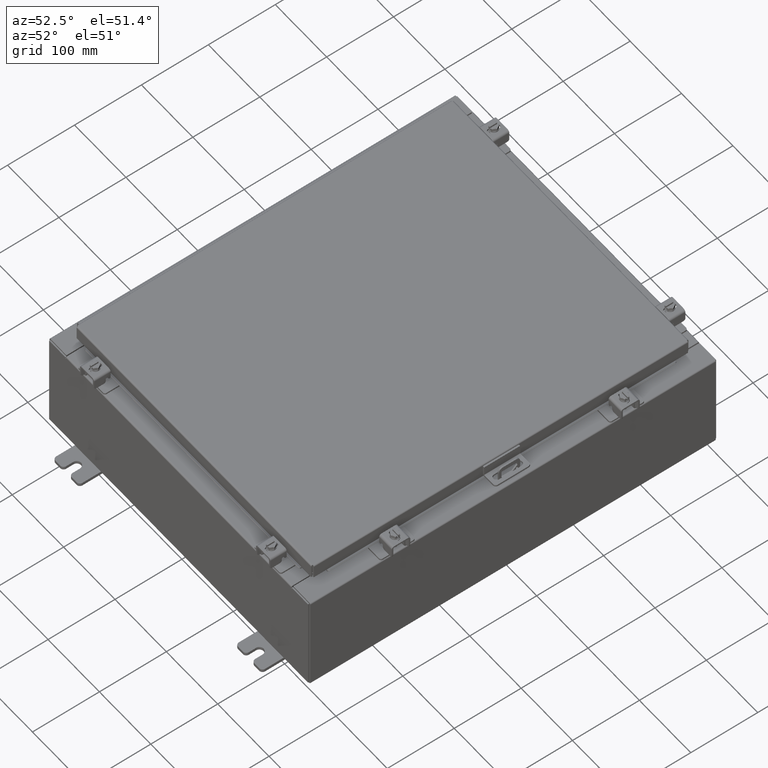
[diagram: clean part render]
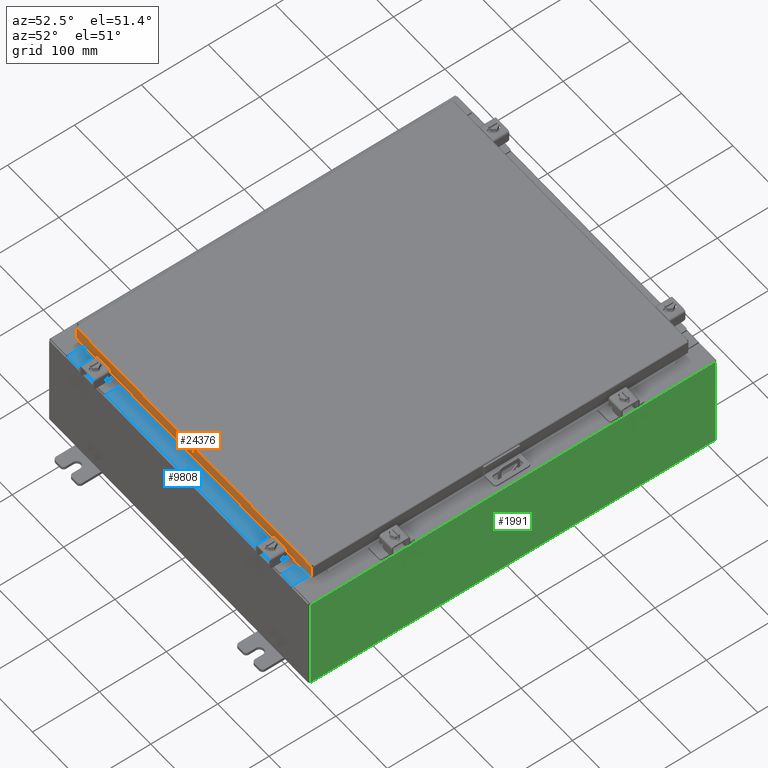
[diagram: same view with three faces highlighted in distinct colors, each labeled with its STEP entity id]
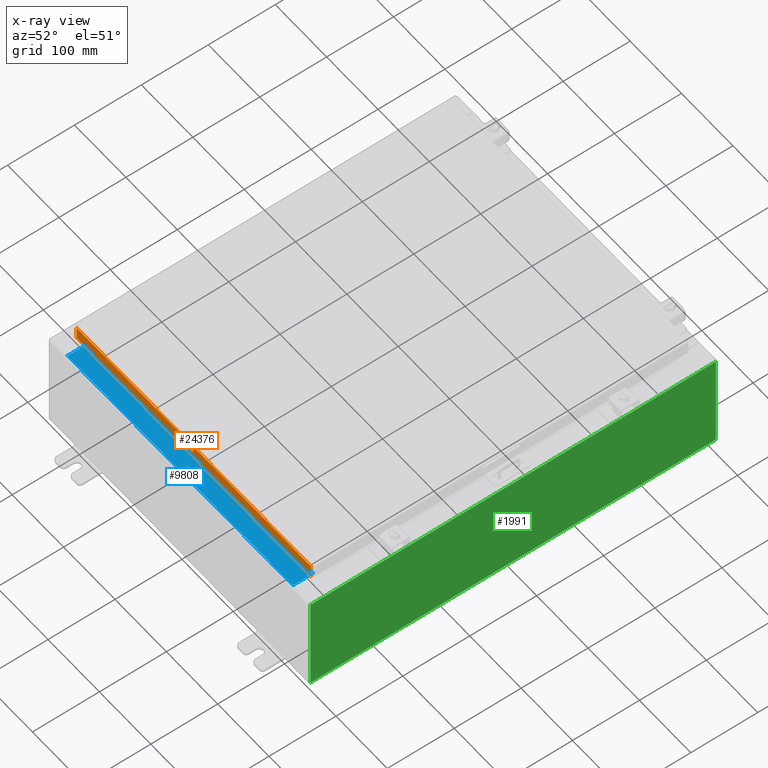
[diagram: x-ray of the same camera — body ghosted, the three highlighted faces saturated]
A machine part, auxiliary view with three faces highlighted in distinct colors.
The next image is the same camera in x-ray (body ghosted, the three faces saturated) — at least one of them is partly hidden behind the body in this view.
Their STEP definitions:

[orange] entity #24376 — the highlighted planar face has unit normal (-0, 1, -0).
#433 = LINE ( 'NONE', #10742, #26698 ) ;
#529 = DIRECTION ( 'NONE',  ( 0.0000000000000000000, 2.818880942772360100E-015, 1.000000000000000000 ) ) ;
#613 = VECTOR ( 'NONE', #11561, 39.37007874015748100 ) ;
#889 = EDGE_CURVE ( 'NONE', #6379, #18050, #25405, .T. ) ;
#1966 = ORIENTED_EDGE ( 'NONE', *, *, #2741, .F. ) ;
#2243 = VERTEX_POINT ( 'NONE', #21317 ) ;
#2741 = EDGE_CURVE ( 'NONE', #26755, #18050, #29718, .T. ) ;
#2952 = ORIENTED_EDGE ( 'NONE', *, *, #11188, .F. ) ;
#3017 = CARTESIAN_POINT ( 'NONE',  ( 9.077999999999999400, -11.09400000000000300, -0.8499999999999999800 ) ) ;
#3130 = LINE ( 'NONE', #19368, #22613 ) ;
#3340 = AXIS2_PLACEMENT_3D ( 'NONE', #13199, #15753, #529 ) ;
#4161 = DIRECTION ( 'NONE',  ( -1.000000000000000000, -1.203722403024570700E-016, 1.203722403024570700E-016 ) ) ;
#4254 = VECTOR ( 'NONE', #20784, 39.37007874015748100 ) ;
#5858 = VERTEX_POINT ( 'NONE', #21837 ) ;
#6196 = DIRECTION ( 'NONE',  ( -0.0000000000000000000, -2.818880942772360100E-015, -1.000000000000000000 ) ) ;
#6379 = VERTEX_POINT ( 'NONE', #8696 ) ;
#7383 = LINE ( 'NONE', #26690, #613 ) ;
#8243 = EDGE_CURVE ( 'NONE', #6379, #2243, #7383, .T. ) ;
#8696 = CARTESIAN_POINT ( 'NONE',  ( -8.989157864376267100, -11.09400000000000100, -0.08769999999999808500 ) ) ;
#8699 = FACE_OUTER_BOUND ( 'NONE', #28719, .T. ) ;
#10742 = CARTESIAN_POINT ( 'NONE',  ( 8.239157864376267100, -11.09399999999999900, -0.8500000000000020900 ) ) ;
#11188 = EDGE_CURVE ( 'NONE', #5858, #26755, #433, .T. ) ;
#11317 = VERTEX_POINT ( 'NONE', #21404 ) ;
#11561 = DIRECTION ( 'NONE',  ( 1.000000000000000000, 1.203722403024570700E-016, -1.203722403024570700E-016 ) ) ;
#12067 = CARTESIAN_POINT ( 'NONE',  ( -8.239157864376267100, -11.09399999999999900, -0.8500000000000020900 ) ) ;
#13199 = CARTESIAN_POINT ( 'NONE',  ( 1.336044409401428800E-015, -11.09400000000000100, 3.168943672650545400E-014 ) ) ;
#15505 = CARTESIAN_POINT ( 'NONE',  ( -8.989157864376267100, -11.09400000000000100, 3.168943672650545400E-014 ) ) ;
#15753 = DIRECTION ( 'NONE',  ( -1.203722403024574200E-016, 1.000000000000000000, -2.818880942772360100E-015 ) ) ;
#18050 = VERTEX_POINT ( 'NONE', #20762 ) ;
#18987 = EDGE_CURVE ( 'NONE', #11317, #5858, #3130, .T. ) ;
#19249 = ORIENTED_EDGE ( 'NONE', *, *, #18987, .F. ) ;
#19368 = CARTESIAN_POINT ( 'NONE',  ( 9.077999999999999400, -11.09400000000000300, -0.8499999999999999800 ) ) ;
#20762 = CARTESIAN_POINT ( 'NONE',  ( -8.989157864376267100, -11.09400000000000700, -0.8499999999999977600 ) ) ;
#20784 = DIRECTION ( 'NONE',  ( -1.000000000000000000, -1.203722403024570700E-016, 1.203722403024570700E-016 ) ) ;
#21317 = CARTESIAN_POINT ( 'NONE',  ( 8.989157864376267100, -11.09400000000000100, -0.08769999999999918100 ) ) ;
#21404 = CARTESIAN_POINT ( 'NONE',  ( 8.989157864376267100, -11.09400000000000300, -0.8499999999999999800 ) ) ;
#21837 = CARTESIAN_POINT ( 'NONE',  ( 8.239157864376267100, -11.09399999999999900, -0.8500000000000020900 ) ) ;
#22390 = ORIENTED_EDGE ( 'NONE', *, *, #8243, .F. ) ;
#22613 = VECTOR ( 'NONE', #4161, 39.37007874015748100 ) ;
#22635 = EDGE_CURVE ( 'NONE', #2243, #11317, #27106, .T. ) ;
#24280 = ORIENTED_EDGE ( 'NONE', *, *, #889, .T. ) ;
#24376 = ADVANCED_FACE ( 'NONE', ( #8699 ), #28428, .F. ) ;
#24676 = ORIENTED_EDGE ( 'NONE', *, *, #22635, .F. ) ;
#25405 = LINE ( 'NONE', #15505, #32175 ) ;
#26338 = VECTOR ( 'NONE', #6196, 39.37007874015748100 ) ;
#26690 = CARTESIAN_POINT ( 'NONE',  ( 9.077999999999999400, -11.09400000000000100, -0.08770000000000026400 ) ) ;
#26698 = VECTOR ( 'NONE', #28550, 39.37007874015748100 ) ;
#26755 = VERTEX_POINT ( 'NONE', #12067 ) ;
#27106 = LINE ( 'NONE', #28989, #26338 ) ;
#28187 = DIRECTION ( 'NONE',  ( 0.0000000000000000000, -2.818880942772360100E-015, -1.000000000000000000 ) ) ;
#28428 = PLANE ( 'NONE',  #3340 ) ;
#28550 = DIRECTION ( 'NONE',  ( -1.000000000000000000, 0.0000000000000000000, 0.0000000000000000000 ) ) ;
#28719 = EDGE_LOOP ( 'NONE', ( #22390, #24280, #1966, #2952, #19249, #24676 ) ) ;
#28989 = CARTESIAN_POINT ( 'NONE',  ( 8.989157864376267100, -11.09400000000000100, -0.07470000000000015500 ) ) ;
#29718 = LINE ( 'NONE', #3017, #4254 ) ;
#32175 = VECTOR ( 'NONE', #28187, 39.37007874015748100 ) ;

[blue] entity #9808 — the highlighted planar face has unit normal (-0, -0, 1).
#154 = ORIENTED_EDGE ( 'NONE', *, *, #6152, .T. ) ;
#3866 = VERTEX_POINT ( 'NONE', #28417 ) ;
#4295 = ORIENTED_EDGE ( 'NONE', *, *, #17697, .F. ) ;
#4399 = LINE ( 'NONE', #24575, #17920 ) ;
#4927 = DIRECTION ( 'NONE',  ( 9.992007221626408900E-016, 3.767692204910442100E-015, 1.000000000000000000 ) ) ;
#5643 = LINE ( 'NONE', #7835, #25126 ) ;
#6098 = VERTEX_POINT ( 'NONE', #25399 ) ;
#6152 = EDGE_CURVE ( 'NONE', #6098, #23448, #5643, .T. ) ;
#6217 = LINE ( 'NONE', #20814, #11392 ) ;
#7494 = ORIENTED_EDGE ( 'NONE', *, *, #14886, .F. ) ;
#7835 = CARTESIAN_POINT ( 'NONE',  ( 2.966537453440386000E-015, -0.08770000000000026400, 3.000000000000001300 ) ) ;
#9098 = EDGE_LOOP ( 'NONE', ( #7494, #4295, #26467, #154 ) ) ;
#9333 = DIRECTION ( 'NONE',  ( -1.000000000000000000, -3.225867722578232700E-016, -9.992007221626408900E-016 ) ) ;
#9808 = ADVANCED_FACE ( 'NONE', ( #31145 ), #20149, .T. ) ;
#11392 = VECTOR ( 'NONE', #23385, 39.37007874015748100 ) ;
#12578 = AXIS2_PLACEMENT_3D ( 'NONE', #15052, #4927, #22702 ) ;
#12948 = DIRECTION ( 'NONE',  ( -1.000000000000000000, -2.909579111261572000E-016, -9.992007221626408900E-016 ) ) ;
#13598 = EDGE_CURVE ( 'NONE', #6098, #18431, #6217, .T. ) ;
#14886 = EDGE_CURVE ( 'NONE', #3866, #23448, #16525, .T. ) ;
#15052 = CARTESIAN_POINT ( 'NONE',  ( 2.997602163845178300E-015, 1.092739197465705300E-014, 3.000000000000001300 ) ) ;
#16525 = LINE ( 'NONE', #17416, #21673 ) ;
#17416 = CARTESIAN_POINT ( 'NONE',  ( -8.637200000000007100, -0.07470000000000015500, 2.999999999999994700 ) ) ;
#17697 = EDGE_CURVE ( 'NONE', #18431, #3866, #4399, .T. ) ;
#17920 = VECTOR ( 'NONE', #9333, 39.37007874015748100 ) ;
#18431 = VERTEX_POINT ( 'NONE', #32453 ) ;
#20149 = PLANE ( 'NONE',  #12578 ) ;
#20814 = CARTESIAN_POINT ( 'NONE',  ( 8.637199999999994700, -1.300299999999999300, 3.000000000000012400 ) ) ;
#21673 = VECTOR ( 'NONE', #24980, 39.37007874015748100 ) ;
#22702 = DIRECTION ( 'NONE',  ( -3.225867722578196200E-016, -1.000000000000000000, 3.767692204910442100E-015 ) ) ;
#23385 = DIRECTION ( 'NONE',  ( -3.225867722578196700E-016, -1.000000000000000000, 3.767692204910442100E-015 ) ) ;
#23448 = VERTEX_POINT ( 'NONE', #27037 ) ;
#24575 = CARTESIAN_POINT ( 'NONE',  ( 8.637199999999994700, -1.287300000000001200, 3.000000000000012400 ) ) ;
#24980 = DIRECTION ( 'NONE',  ( 3.225867722578196700E-016, 1.000000000000000000, -3.767692204910442100E-015 ) ) ;
#25126 = VECTOR ( 'NONE', #12948, 39.37007874015748100 ) ;
#25399 = CARTESIAN_POINT ( 'NONE',  ( 8.637199999999994700, -0.08770000000000026400, 3.000000000000008000 ) ) ;
#26467 = ORIENTED_EDGE ( 'NONE', *, *, #13598, .F. ) ;
#27037 = CARTESIAN_POINT ( 'NONE',  ( -8.637200000000007100, -0.08770000000000026400, 2.999999999999994700 ) ) ;
#28417 = CARTESIAN_POINT ( 'NONE',  ( -8.637200000000007100, -1.287299999999999200, 2.999999999999999100 ) ) ;
#31145 = FACE_OUTER_BOUND ( 'NONE', #9098, .T. ) ;
#32453 = CARTESIAN_POINT ( 'NONE',  ( 8.637199999999994700, -1.287300000000001200, 3.000000000000012400 ) ) ;

[green] entity #1991 — the highlighted planar face has unit normal (-1, 0, 0).
#1396 = CARTESIAN_POINT ( 'NONE',  ( 10.00000000000000000, 11.92530000000000000, -3.344806387242682200E-014 ) ) ;
#1567 = DIRECTION ( 'NONE',  ( -3.319545939341922800E-015, 0.0000000000000000000, -1.000000000000000000 ) ) ;
#1991 = ADVANCED_FACE ( 'NONE', ( #29363 ), #10104, .F. ) ;
#2461 = VERTEX_POINT ( 'NONE', #14764 ) ;
#2697 = ORIENTED_EDGE ( 'NONE', *, *, #6939, .T. ) ;
#3478 = VECTOR ( 'NONE', #21721, 39.37007874015748100 ) ;
#5304 = CARTESIAN_POINT ( 'NONE',  ( 10.00000000000002000, 11.92530000000000000, 5.837600000000001000 ) ) ;
#6157 = CARTESIAN_POINT ( 'NONE',  ( 10.00000000000002000, -11.92530000000000000, 5.837600000000001000 ) ) ;
#6939 = EDGE_CURVE ( 'NONE', #29709, #2461, #10220, .T. ) ;
#8686 = CARTESIAN_POINT ( 'NONE',  ( 10.00000000000000000, -11.92530000000000000, 0.01299999999999986800 ) ) ;
#8826 = VECTOR ( 'NONE', #29034, 39.37007874015748100 ) ;
#9223 = CARTESIAN_POINT ( 'NONE',  ( 10.00000000000000000, -11.92530000000000000, -3.344806387242682200E-014 ) ) ;
#10083 = EDGE_CURVE ( 'NONE', #29709, #19999, #15612, .T. ) ;
#10104 = PLANE ( 'NONE',  #14516 ) ;
#10220 = LINE ( 'NONE', #1396, #3478 ) ;
#10282 = VECTOR ( 'NONE', #20521, 39.37007874015748100 ) ;
#11090 = EDGE_LOOP ( 'NONE', ( #28404, #15974, #11417, #2697 ) ) ;
#11417 = ORIENTED_EDGE ( 'NONE', *, *, #10083, .F. ) ;
#11661 = VECTOR ( 'NONE', #1567, 39.37007874015748100 ) ;
#12449 = LINE ( 'NONE', #9223, #11661 ) ;
#14516 = AXIS2_PLACEMENT_3D ( 'NONE', #27921, #30491, #15243 ) ;
#14764 = CARTESIAN_POINT ( 'NONE',  ( 10.00000000000002000, 11.92529999999999800, 5.837600000000001000 ) ) ;
#15243 = DIRECTION ( 'NONE',  ( 3.319545939341922000E-015, 0.0000000000000000000, 1.000000000000000000 ) ) ;
#15612 = LINE ( 'NONE', #8686, #8826 ) ;
#15974 = ORIENTED_EDGE ( 'NONE', *, *, #32690, .T. ) ;
#17068 = LINE ( 'NONE', #5304, #10282 ) ;
#19999 = VERTEX_POINT ( 'NONE', #28703 ) ;
#20521 = DIRECTION ( 'NONE',  ( -0.0000000000000000000, -1.000000000000000000, -0.0000000000000000000 ) ) ;
#21721 = DIRECTION ( 'NONE',  ( 3.319545939341922800E-015, 0.0000000000000000000, 1.000000000000000000 ) ) ;
#23320 = VERTEX_POINT ( 'NONE', #6157 ) ;
#24291 = CARTESIAN_POINT ( 'NONE',  ( 10.00000000000000000, 11.92529999999999800, 0.01299999999999986800 ) ) ;
#24298 = EDGE_CURVE ( 'NONE', #2461, #23320, #17068, .T. ) ;
#27921 = CARTESIAN_POINT ( 'NONE',  ( 10.00000000000000000, 0.0000000000000000000, -3.344806387242682200E-014 ) ) ;
#28404 = ORIENTED_EDGE ( 'NONE', *, *, #24298, .T. ) ;
#28703 = CARTESIAN_POINT ( 'NONE',  ( 10.00000000000000000, -11.92530000000000000, 0.01299999999999985900 ) ) ;
#29034 = DIRECTION ( 'NONE',  ( -0.0000000000000000000, -1.000000000000000000, -0.0000000000000000000 ) ) ;
#29363 = FACE_OUTER_BOUND ( 'NONE', #11090, .T. ) ;
#29709 = VERTEX_POINT ( 'NONE', #24291 ) ;
#30491 = DIRECTION ( 'NONE',  ( -1.000000000000000000, 0.0000000000000000000, 3.319545939341922000E-015 ) ) ;
#32690 = EDGE_CURVE ( 'NONE', #23320, #19999, #12449, .T. ) ;